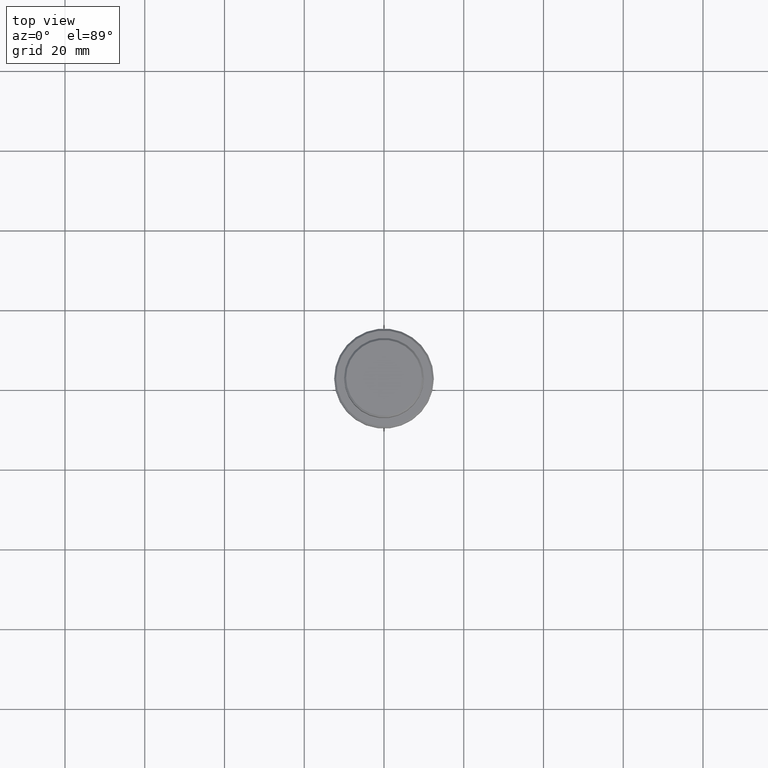
[diagram: clean part render]
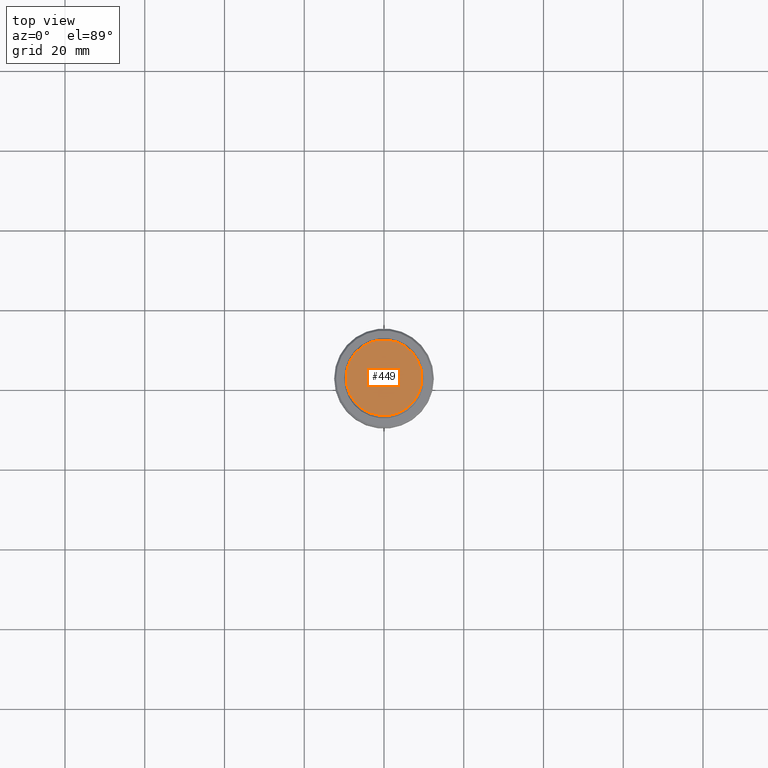
[diagram: same view with one face highlighted and labeled with its STEP entity id]
A machine part, top view. The second image highlights one B-rep face of the part: STEP entity #449.
In plain terms, the highlighted planar face has unit normal (0, -0, 1).
Its self-contained STEP definition (entity closure, byte-faithful):
#45 = DIRECTION ( 'NONE',  ( 1.000000000000000000, 0.000000000000000000, 0.000000000000000000 ) ) ;
#202 = EDGE_CURVE ( 'NONE', #661, #788, #586, .T. ) ;
#203 = AXIS2_PLACEMENT_3D ( 'NONE', #457, #257, #45 ) ;
#205 = AXIS2_PLACEMENT_3D ( 'NONE', #1285, #760, #1196 ) ;
#257 = DIRECTION ( 'NONE',  ( -0.000000000000000000, -0.000000000000000000, 1.000000000000000000 ) ) ;
#329 = CARTESIAN_POINT ( 'NONE',  ( 0.000000000000000000, 0.000000000000000000, 0.000000000000000000 ) ) ;
#332 = PLANE ( 'NONE',  #205 ) ;
#449 = ADVANCED_FACE ( 'NONE', ( #849 ), #332, .T. ) ;
#457 = CARTESIAN_POINT ( 'NONE',  ( 0.000000000000000000, 0.000000000000000000, 0.000000000000000000 ) ) ;
#560 = CARTESIAN_POINT ( 'NONE',  ( 9.500000000000008882, 1.194030629168669864E-15, 0.000000000000000000 ) ) ;
#561 = DIRECTION ( 'NONE',  ( -0.000000000000000000, -0.000000000000000000, 1.000000000000000000 ) ) ;
#586 = CIRCLE ( 'NONE', #203, 9.500000000000008882 ) ;
#661 = VERTEX_POINT ( 'NONE', #1059 ) ;
#760 = DIRECTION ( 'NONE',  ( 0.000000000000000000, -0.000000000000000000, 1.000000000000000000 ) ) ;
#788 = VERTEX_POINT ( 'NONE', #560 ) ;
#849 = FACE_OUTER_BOUND ( 'NONE', #1056, .T. ) ;
#876 = DIRECTION ( 'NONE',  ( 1.000000000000000000, 0.000000000000000000, 0.000000000000000000 ) ) ;
#1056 = EDGE_LOOP ( 'NONE', ( #1155, #1352 ) ) ;
#1059 = CARTESIAN_POINT ( 'NONE',  ( -9.500000000000008882, 0.000000000000000000, 0.000000000000000000 ) ) ;
#1155 = ORIENTED_EDGE ( 'NONE', *, *, #202, .T. ) ;
#1196 = DIRECTION ( 'NONE',  ( 1.000000000000000000, 0.000000000000000000, 0.000000000000000000 ) ) ;
#1263 = EDGE_CURVE ( 'NONE', #788, #661, #1360, .T. ) ;
#1285 = CARTESIAN_POINT ( 'NONE',  ( 0.000000000000000000, 0.000000000000000000, 0.000000000000000000 ) ) ;
#1352 = ORIENTED_EDGE ( 'NONE', *, *, #1263, .T. ) ;
#1360 = CIRCLE ( 'NONE', #1415, 9.500000000000008882 ) ;
#1415 = AXIS2_PLACEMENT_3D ( 'NONE', #329, #561, #876 ) ;